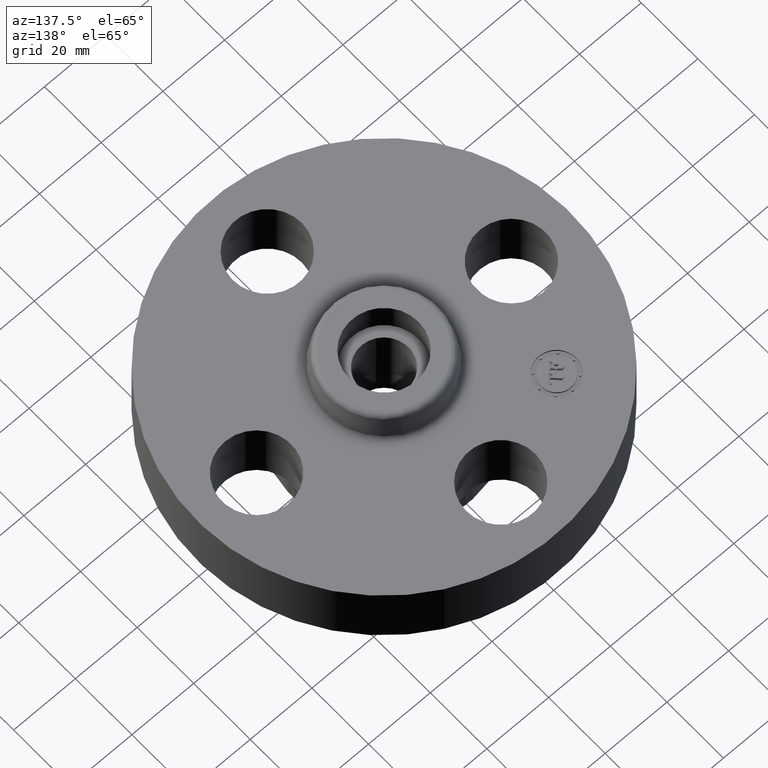
[diagram: clean part render]
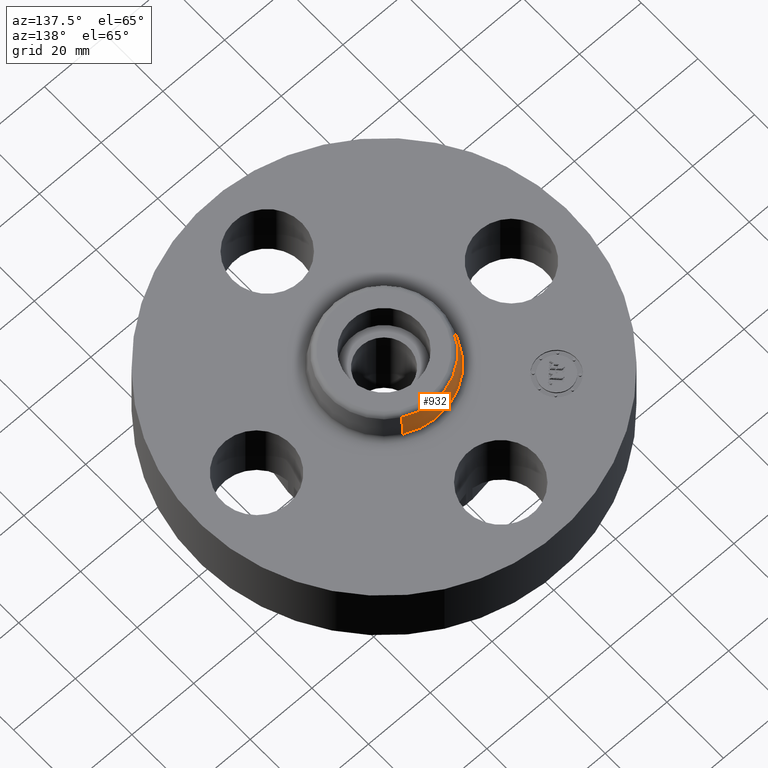
[diagram: same view with one face highlighted and labeled with its STEP entity id]
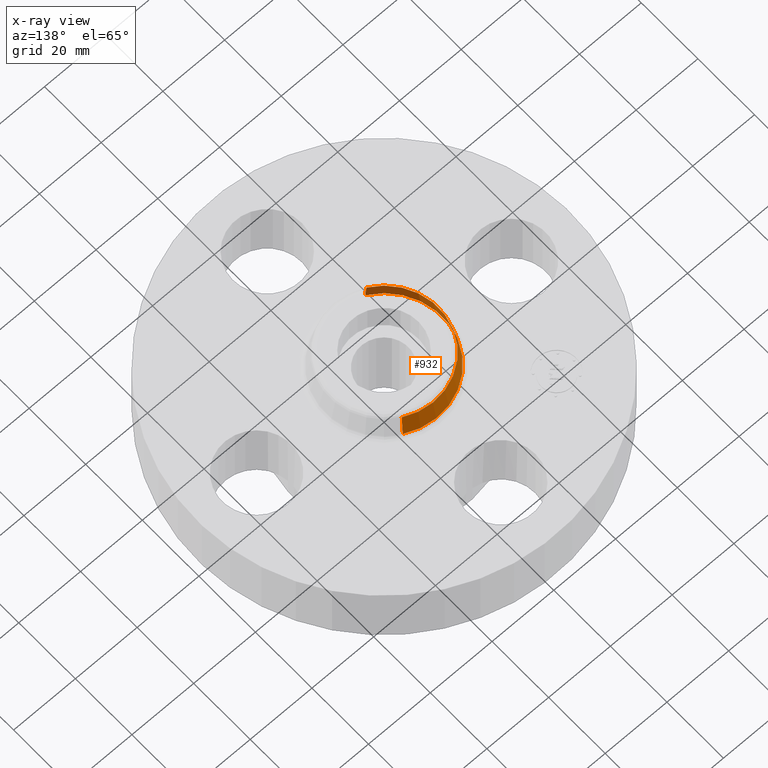
[diagram: x-ray of the same camera — body ghosted, the highlighted face saturated]
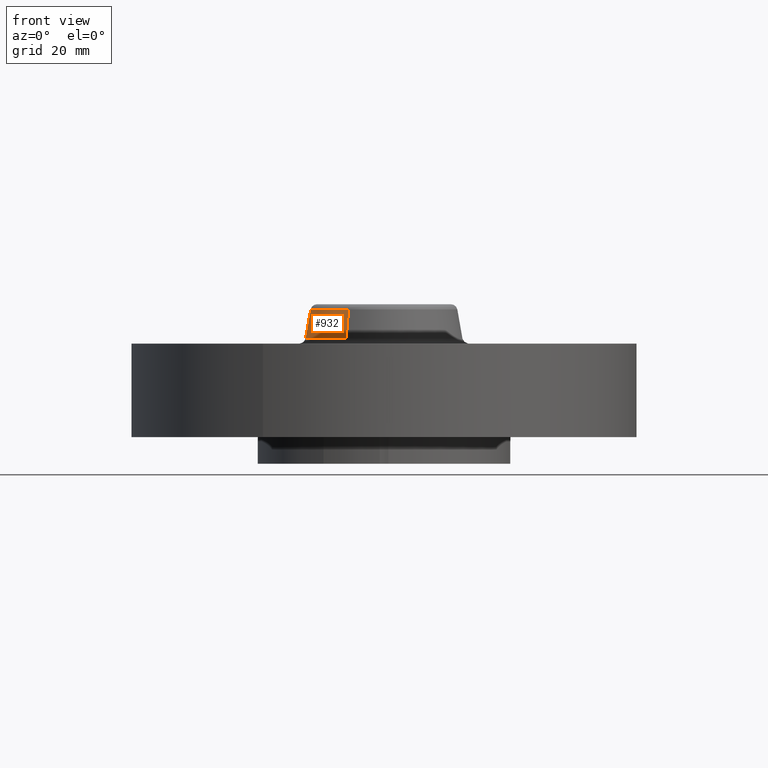
[diagram: same view with one face highlighted and labeled with its STEP entity id]
A machine part, auxiliary view. The second image highlights one B-rep face of the part: STEP entity #932.
The next image is the same camera in x-ray: the body ghosted, the highlighted face saturated — about 0% of this face is hidden behind the body in this view.
A second angle (front view) of the same face is appended — the face is thin or edge-on in the first view.
In plain terms, the highlighted conical surface has half-angle 10 deg.
Its self-contained STEP definition (entity closure, byte-faithful):
#837=AXIS2_PLACEMENT_3D('Circle Axis2P3D',#835,#836,$) ;
#893=AXIS2_PLACEMENT_3D('Cone Axis2P3D',#890,#891,#892) ;
#923=AXIS2_PLACEMENT_3D('Circle Axis2P3D',#921,#922,$) ;
#808=CARTESIAN_POINT('Vertex',(0.355377782267,0.650514667009,0.929581109344)) ;
#815=CARTESIAN_POINT('Vertex',(-0.355377782267,-0.650514667009,0.929581109344)) ;
#835=CARTESIAN_POINT('Axis2P3D Location',(0.,0.,0.929581109344)) ;
#890=CARTESIAN_POINT('Axis2P3D Location',(0.,0.,1.20041889066)) ;
#895=CARTESIAN_POINT('Line Origine',(0.343930057281,0.62955974698,1.065)) ;
#899=CARTESIAN_POINT('Vertex',(0.332482332294,0.608604826951,1.20041889066)) ;
#906=CARTESIAN_POINT('Vertex',(-0.332482332294,-0.608604826951,1.20041889066)) ;
#909=CARTESIAN_POINT('Line Origine',(-0.343930057281,-0.62955974698,1.065)) ;
#921=CARTESIAN_POINT('Axis2P3D Location',(0.,0.,1.20041889066)) ;
#836=DIRECTION('Axis2P3D Direction',(0.,0.,-0.0393700787402)) ;
#891=DIRECTION('Axis2P3D Direction',(0.,0.,-0.0393700787402)) ;
#892=DIRECTION('Axis2P3D XDirection',(-0.0188750212049,-0.0345504945626,0.)) ;
#896=DIRECTION('Vector Direction',(0.00327761303565,0.00599963041829,-0.03877195878)) ;
#910=DIRECTION('Vector Direction',(-0.00327761303565,-0.00599963041829,-0.03877195878)) ;
#922=DIRECTION('Axis2P3D Direction',(0.,0.,-0.0393700787402)) ;
#897=VECTOR('Line Direction',#896,0.0393700787402) ;
#911=VECTOR('Line Direction',#910,0.0393700787402) ;
#927=ORIENTED_EDGE('',*,*,#839,.F.) ;
#928=ORIENTED_EDGE('',*,*,#913,.T.) ;
#929=ORIENTED_EDGE('',*,*,#925,.T.) ;
#930=ORIENTED_EDGE('',*,*,#901,.F.) ;
#932=ADVANCED_FACE('PartBody',(#931),#894,.T.) ;
#838=CIRCLE('generated circle',#837,0.741257512693) ;
#924=CIRCLE('generated circle',#923,0.693501504451) ;
#894=CONICAL_SURFACE('Cone',#893,0.693501504451,0.174532925199) ;
#839=EDGE_CURVE('',#816,#809,#838,.T.) ;
#901=EDGE_CURVE('',#809,#900,#898,.F.) ;
#913=EDGE_CURVE('',#816,#907,#912,.F.) ;
#925=EDGE_CURVE('',#907,#900,#924,.T.) ;
#926=EDGE_LOOP('',(#927,#928,#929,#930)) ;
#931=FACE_OUTER_BOUND('',#926,.T.) ;
#898=LINE('Line',#895,#897) ;
#912=LINE('Line',#909,#911) ;
#809=VERTEX_POINT('',#808) ;
#816=VERTEX_POINT('',#815) ;
#900=VERTEX_POINT('',#899) ;
#907=VERTEX_POINT('',#906) ;